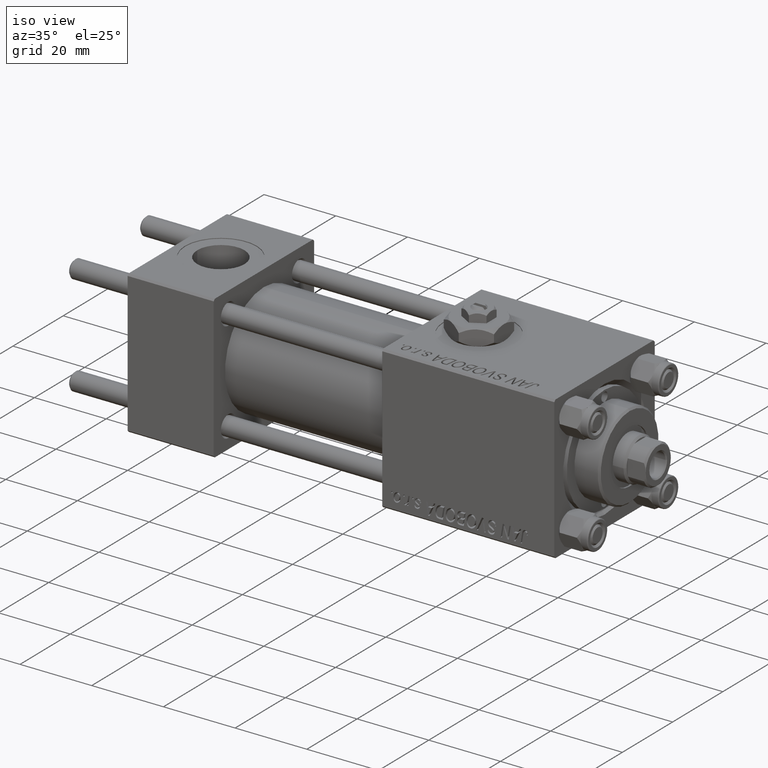
[diagram: clean part render]
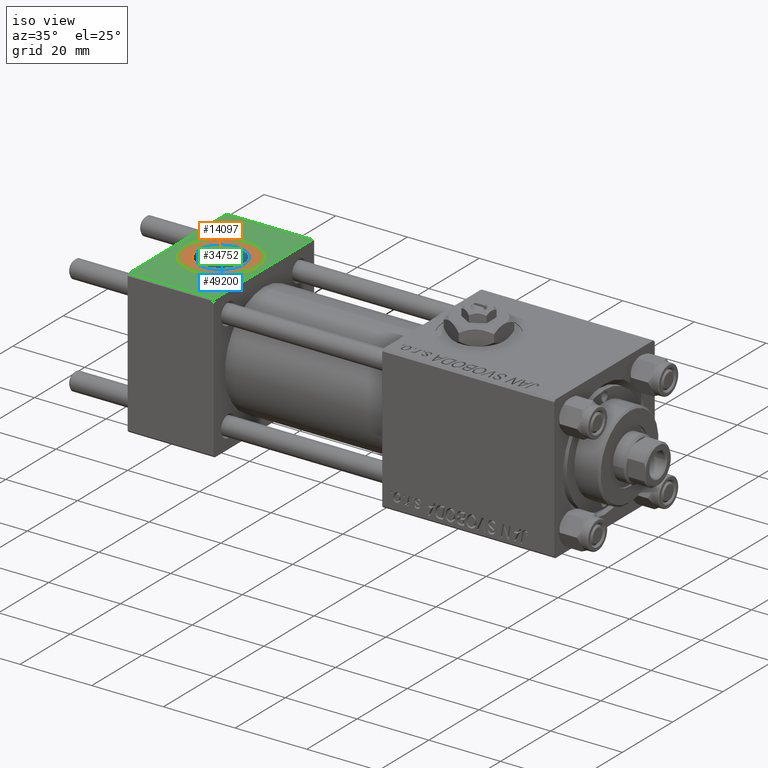
[diagram: same view with three faces highlighted in distinct colors, each labeled with its STEP entity id]
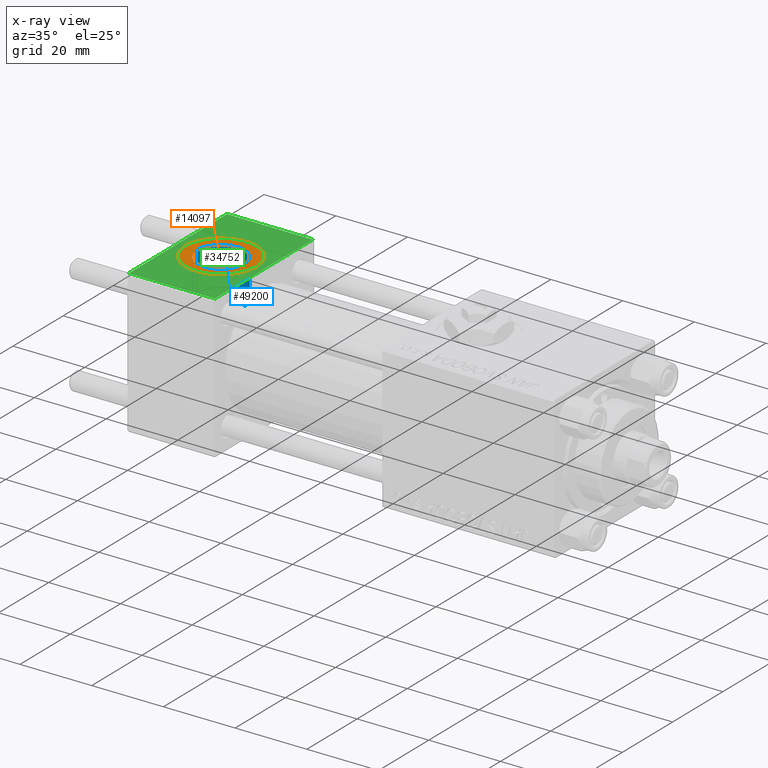
[diagram: x-ray of the same camera — body ghosted, the three highlighted faces saturated]
A machine part, iso view with three faces highlighted in distinct colors.
The next image is the same camera in x-ray (body ghosted, the three faces saturated) — at least one of them is partly hidden behind the body in this view.
Their STEP definitions:

[orange] entity #14097 — the highlighted planar face has unit normal (0, 0, 1).
#1069 = DIRECTION ( 'NONE',  ( 0.000000000000000000, 0.000000000000000000, 1.000000000000000000 ) ) ;
#2196 = DIRECTION ( 'NONE',  ( 1.000000000000000000, 0.000000000000000000, 0.000000000000000000 ) ) ;
#5948 = DIRECTION ( 'NONE',  ( 0.000000000000000000, 0.000000000000000000, 1.000000000000000000 ) ) ;
#7095 = VERTEX_POINT ( 'NONE', #24605 ) ;
#7901 = DIRECTION ( 'NONE',  ( 1.000000000000000000, 0.000000000000000000, 0.000000000000000000 ) ) ;
#9652 = CIRCLE ( 'NONE', #38971, 6.579999999999999183 ) ;
#10726 = CARTESIAN_POINT ( 'NONE',  ( 18.57999999999999829, 1.540743955509788682E-30, 19.79999999999999716 ) ) ;
#10997 = DIRECTION ( 'NONE',  ( 1.000000000000000000, 0.000000000000000000, 0.000000000000000000 ) ) ;
#11486 = EDGE_CURVE ( 'NONE', #45150, #37996, #9652, .T. ) ;
#12414 = EDGE_CURVE ( 'NONE', #33080, #7095, #47421, .T. ) ;
#12714 = ORIENTED_EDGE ( 'NONE', *, *, #12414, .T. ) ;
#13435 = PLANE ( 'NONE',  #46634 ) ;
#13522 = AXIS2_PLACEMENT_3D ( 'NONE', #14762, #35745, #7901 ) ;
#13689 = FACE_BOUND ( 'NONE', #44437, .T. ) ;
#14097 = ADVANCED_FACE ( 'NONE', ( #13689, #33635 ), #13435, .T. ) ;
#14192 = CARTESIAN_POINT ( 'NONE',  ( 5.420000000000000817, 8.058175938389596335E-16, 19.79999999999999716 ) ) ;
#14762 = CARTESIAN_POINT ( 'NONE',  ( 12.00000000000000000, 1.540743955509788682E-30, 19.79999999999999716 ) ) ;
#15389 = ORIENTED_EDGE ( 'NONE', *, *, #36978, .T. ) ;
#19727 = AXIS2_PLACEMENT_3D ( 'NONE', #50510, #22436, #2196 ) ;
#19940 = EDGE_CURVE ( 'NONE', #37996, #45150, #31101, .T. ) ;
#21739 = DIRECTION ( 'NONE',  ( 1.000000000000000000, 0.000000000000000000, 0.000000000000000000 ) ) ;
#22085 = CARTESIAN_POINT ( 'NONE',  ( 12.00000000000000000, 1.540743955509788682E-30, 19.79999999999999716 ) ) ;
#22436 = DIRECTION ( 'NONE',  ( 0.000000000000000000, 0.000000000000000000, 1.000000000000000000 ) ) ;
#22819 = DIRECTION ( 'NONE',  ( 0.000000000000000000, 0.000000000000000000, 1.000000000000000000 ) ) ;
#24605 = CARTESIAN_POINT ( 'NONE',  ( 22.00000000000000000, 1.540743955509788682E-30, 19.79999999999999716 ) ) ;
#28218 = CIRCLE ( 'NONE', #41622, 9.999999999999998224 ) ;
#29109 = CARTESIAN_POINT ( 'NONE',  ( 2.000000000000003553, 1.224646799147354440E-15, 19.79999999999999716 ) ) ;
#31101 = CIRCLE ( 'NONE', #13522, 6.579999999999999183 ) ;
#33080 = VERTEX_POINT ( 'NONE', #29109 ) ;
#33635 = FACE_OUTER_BOUND ( 'NONE', #42897, .T. ) ;
#35745 = DIRECTION ( 'NONE',  ( 0.000000000000000000, 0.000000000000000000, 1.000000000000000000 ) ) ;
#36978 = EDGE_CURVE ( 'NONE', #7095, #33080, #28218, .T. ) ;
#37222 = CARTESIAN_POINT ( 'NONE',  ( 12.00000000000000000, 1.540743955509788682E-30, 19.79999999999999716 ) ) ;
#37996 = VERTEX_POINT ( 'NONE', #14192 ) ;
#38971 = AXIS2_PLACEMENT_3D ( 'NONE', #37222, #5948, #21739 ) ;
#41622 = AXIS2_PLACEMENT_3D ( 'NONE', #50646, #22819, #10997 ) ;
#42897 = EDGE_LOOP ( 'NONE', ( #15389, #12714 ) ) ;
#44170 = ORIENTED_EDGE ( 'NONE', *, *, #19940, .F. ) ;
#44437 = EDGE_LOOP ( 'NONE', ( #47307, #44170 ) ) ;
#45150 = VERTEX_POINT ( 'NONE', #10726 ) ;
#46634 = AXIS2_PLACEMENT_3D ( 'NONE', #22085, #1069, #49661 ) ;
#47307 = ORIENTED_EDGE ( 'NONE', *, *, #11486, .F. ) ;
#47421 = CIRCLE ( 'NONE', #19727, 9.999999999999998224 ) ;
#49661 = DIRECTION ( 'NONE',  ( 1.000000000000000000, 0.000000000000000000, -0.000000000000000000 ) ) ;
#50510 = CARTESIAN_POINT ( 'NONE',  ( 12.00000000000000000, 1.540743955509788682E-30, 19.79999999999999716 ) ) ;
#50646 = CARTESIAN_POINT ( 'NONE',  ( 12.00000000000000000, 1.540743955509788682E-30, 19.79999999999999716 ) ) ;

[blue] entity #49200 — the highlighted cylindrical surface (edge-blend (fillet) strip) has radius 6.58 mm, axis along (0, 0, 1).
#2662 = CARTESIAN_POINT ( 'NONE',  ( 18.57999999999999829, 1.540743955509788682E-30, 9.165987261146492315 ) ) ;
#3015 = CARTESIAN_POINT ( 'NONE',  ( 18.57999999999999829, 1.540743955509788682E-30, 9.199999999999995737 ) ) ;
#5043 = FACE_OUTER_BOUND ( 'NONE', #27341, .T. ) ;
#5948 = DIRECTION ( 'NONE',  ( 0.000000000000000000, 0.000000000000000000, 1.000000000000000000 ) ) ;
#6887 = CARTESIAN_POINT ( 'NONE',  ( 5.420000000000000817, 8.058175938389596335E-16, 9.165987261146492315 ) ) ;
#7738 = DIRECTION ( 'NONE',  ( -0.000000000000000000, -0.000000000000000000, 1.000000000000000000 ) ) ;
#9652 = CIRCLE ( 'NONE', #38971, 6.579999999999999183 ) ;
#10418 = ORIENTED_EDGE ( 'NONE', *, *, #50408, .F. ) ;
#10647 = DIRECTION ( 'NONE',  ( 1.000000000000000000, 0.000000000000000000, 0.000000000000000000 ) ) ;
#10726 = CARTESIAN_POINT ( 'NONE',  ( 18.57999999999999829, 1.540743955509788682E-30, 19.79999999999999716 ) ) ;
#11486 = EDGE_CURVE ( 'NONE', #45150, #37996, #9652, .T. ) ;
#12305 = AXIS2_PLACEMENT_3D ( 'NONE', #24493, #37083, #44723 ) ;
#12401 = CIRCLE ( 'NONE', #51808, 6.579999999999999183 ) ;
#13094 = DIRECTION ( 'NONE',  ( -0.000000000000000000, -0.000000000000000000, 1.000000000000000000 ) ) ;
#14192 = CARTESIAN_POINT ( 'NONE',  ( 5.420000000000000817, 8.058175938389596335E-16, 19.79999999999999716 ) ) ;
#14332 = DIRECTION ( 'NONE',  ( -0.000000000000000000, -0.000000000000000000, -1.000000000000000000 ) ) ;
#16250 = LINE ( 'NONE', #20981, #24902 ) ;
#18568 = EDGE_CURVE ( 'NONE', #21806, #45150, #43723, .T. ) ;
#19308 = CARTESIAN_POINT ( 'NONE',  ( 12.00000000000000000, 1.540743955509788682E-30, 9.165987261146492315 ) ) ;
#20186 = ORIENTED_EDGE ( 'NONE', *, *, #39256, .T. ) ;
#20981 = CARTESIAN_POINT ( 'NONE',  ( 5.420000000000000817, 8.058175938389596335E-16, 9.199999999999995737 ) ) ;
#21739 = DIRECTION ( 'NONE',  ( 1.000000000000000000, 0.000000000000000000, 0.000000000000000000 ) ) ;
#21806 = VERTEX_POINT ( 'NONE', #2662 ) ;
#24493 = CARTESIAN_POINT ( 'NONE',  ( 12.00000000000000000, 1.540743955509788682E-30, 9.199999999999995737 ) ) ;
#24902 = VECTOR ( 'NONE', #13094, 1000.000000000000000 ) ;
#27341 = EDGE_LOOP ( 'NONE', ( #10418, #20186, #51499, #32927 ) ) ;
#32889 = CYLINDRICAL_SURFACE ( 'NONE', #12305, 6.579999999999999183 ) ;
#32927 = ORIENTED_EDGE ( 'NONE', *, *, #11486, .T. ) ;
#37083 = DIRECTION ( 'NONE',  ( -0.000000000000000000, -0.000000000000000000, 1.000000000000000000 ) ) ;
#37222 = CARTESIAN_POINT ( 'NONE',  ( 12.00000000000000000, 1.540743955509788682E-30, 19.79999999999999716 ) ) ;
#37996 = VERTEX_POINT ( 'NONE', #14192 ) ;
#38971 = AXIS2_PLACEMENT_3D ( 'NONE', #37222, #5948, #21739 ) ;
#39256 = EDGE_CURVE ( 'NONE', #49082, #21806, #12401, .T. ) ;
#43619 = VECTOR ( 'NONE', #7738, 1000.000000000000000 ) ;
#43723 = LINE ( 'NONE', #3015, #43619 ) ;
#44723 = DIRECTION ( 'NONE',  ( 1.000000000000000000, 0.000000000000000000, 0.000000000000000000 ) ) ;
#45150 = VERTEX_POINT ( 'NONE', #10726 ) ;
#49082 = VERTEX_POINT ( 'NONE', #6887 ) ;
#49200 = ADVANCED_FACE ( 'NONE', ( #5043 ), #32889, .F. ) ;
#50408 = EDGE_CURVE ( 'NONE', #49082, #37996, #16250, .T. ) ;
#51499 = ORIENTED_EDGE ( 'NONE', *, *, #18568, .T. ) ;
#51808 = AXIS2_PLACEMENT_3D ( 'NONE', #19308, #14332, #10647 ) ;

[green] entity #34752 — the highlighted planar face has unit normal (0, 0, -1).
#442 = AXIS2_PLACEMENT_3D ( 'NONE', #26779, #34897, #39359 ) ;
#2401 = EDGE_CURVE ( 'NONE', #6801, #29772, #11516, .T. ) ;
#2748 = VECTOR ( 'NONE', #29648, 1000.000000000000000 ) ;
#3079 = VECTOR ( 'NONE', #14693, 1000.000000000000000 ) ;
#3718 = CARTESIAN_POINT ( 'NONE',  ( 12.00000000000000000, 1.540743955509788682E-30, 19.99999999999999645 ) ) ;
#4181 = CARTESIAN_POINT ( 'NONE',  ( 24.00000000000000000, 19.50000000000000000, 20.00000000000000000 ) ) ;
#4633 = VECTOR ( 'NONE', #38215, 1000.000000000000000 ) ;
#6278 = CARTESIAN_POINT ( 'NONE',  ( 0.000000000000000000, 20.00000000000000000, 20.00000000000000000 ) ) ;
#6801 = VERTEX_POINT ( 'NONE', #4181 ) ;
#6972 = EDGE_CURVE ( 'NONE', #43094, #29772, #34337, .T. ) ;
#7933 = DIRECTION ( 'NONE',  ( 0.000000000000000000, 0.000000000000000000, 1.000000000000000000 ) ) ;
#8260 = CIRCLE ( 'NONE', #47680, 9.999999999999998224 ) ;
#9622 = CARTESIAN_POINT ( 'NONE',  ( 0.000000000000000000, 19.50000000000000000, 20.00000000000000000 ) ) ;
#9814 = ORIENTED_EDGE ( 'NONE', *, *, #50058, .T. ) ;
#9879 = CIRCLE ( 'NONE', #16601, 9.999999999999998224 ) ;
#11516 = LINE ( 'NONE', #42760, #32105 ) ;
#13624 = CARTESIAN_POINT ( 'NONE',  ( 24.00000000000000000, -19.49999999999999289, 19.99999999999998934 ) ) ;
#14622 = ORIENTED_EDGE ( 'NONE', *, *, #30229, .T. ) ;
#14693 = DIRECTION ( 'NONE',  ( 0.000000000000000000, -1.000000000000000000, -2.602085213965210149E-16 ) ) ;
#16601 = AXIS2_PLACEMENT_3D ( 'NONE', #3718, #7933, #51787 ) ;
#23195 = EDGE_LOOP ( 'NONE', ( #9814, #35046, #38058, #14622 ) ) ;
#24990 = DIRECTION ( 'NONE',  ( 1.000000000000000000, 0.000000000000000000, 0.000000000000000000 ) ) ;
#25646 = LINE ( 'NONE', #9622, #4633 ) ;
#26121 = ORIENTED_EDGE ( 'NONE', *, *, #39630, .F. ) ;
#26779 = CARTESIAN_POINT ( 'NONE',  ( 24.00000000000000000, 20.00000000000000000, 20.00000000000000000 ) ) ;
#27250 = CARTESIAN_POINT ( 'NONE',  ( 0.000000000000000000, -19.49999999999999289, 19.99999999999998934 ) ) ;
#28692 = CARTESIAN_POINT ( 'NONE',  ( 22.00000000000000000, 1.540743955509788682E-30, 19.99999999999999645 ) ) ;
#29648 = DIRECTION ( 'NONE',  ( 1.000000000000000000, 0.000000000000000000, 0.000000000000000000 ) ) ;
#29772 = VERTEX_POINT ( 'NONE', #36295 ) ;
#30055 = CARTESIAN_POINT ( 'NONE',  ( 0.000000000000000000, 19.50000000000000000, 20.00000000000000000 ) ) ;
#30229 = EDGE_CURVE ( 'NONE', #6801, #49762, #25646, .T. ) ;
#30454 = PLANE ( 'NONE',  #442 ) ;
#31215 = DIRECTION ( 'NONE',  ( 0.000000000000000000, -1.000000000000000000, -2.602085213965210149E-16 ) ) ;
#32080 = CARTESIAN_POINT ( 'NONE',  ( 12.00000000000000000, 1.540743955509788682E-30, 19.99999999999999645 ) ) ;
#32105 = VECTOR ( 'NONE', #31215, 1000.000000000000000 ) ;
#32607 = VERTEX_POINT ( 'NONE', #36375 ) ;
#34337 = LINE ( 'NONE', #13624, #2748 ) ;
#34752 = ADVANCED_FACE ( 'NONE', ( #50919, #43037 ), #30454, .F. ) ;
#34897 = DIRECTION ( 'NONE',  ( 0.000000000000000000, 2.602085213965210149E-16, -1.000000000000000000 ) ) ;
#35046 = ORIENTED_EDGE ( 'NONE', *, *, #6972, .T. ) ;
#36295 = CARTESIAN_POINT ( 'NONE',  ( 24.00000000000000000, -19.49999999999999289, 19.99999999999998934 ) ) ;
#36375 = CARTESIAN_POINT ( 'NONE',  ( 2.000000000000003553, 1.224646799147354440E-15, 19.99999999999999645 ) ) ;
#38058 = ORIENTED_EDGE ( 'NONE', *, *, #2401, .F. ) ;
#38064 = LINE ( 'NONE', #6278, #3079 ) ;
#38215 = DIRECTION ( 'NONE',  ( -1.000000000000000000, 0.000000000000000000, 0.000000000000000000 ) ) ;
#39346 = ORIENTED_EDGE ( 'NONE', *, *, #41730, .F. ) ;
#39359 = DIRECTION ( 'NONE',  ( 0.000000000000000000, 1.000000000000000000, 2.602085213965210149E-16 ) ) ;
#39630 = EDGE_CURVE ( 'NONE', #32607, #39737, #9879, .T. ) ;
#39737 = VERTEX_POINT ( 'NONE', #28692 ) ;
#41730 = EDGE_CURVE ( 'NONE', #39737, #32607, #8260, .T. ) ;
#42760 = CARTESIAN_POINT ( 'NONE',  ( 24.00000000000000000, 20.00000000000000000, 20.00000000000000000 ) ) ;
#43037 = FACE_OUTER_BOUND ( 'NONE', #23195, .T. ) ;
#43094 = VERTEX_POINT ( 'NONE', #27250 ) ;
#44168 = DIRECTION ( 'NONE',  ( 0.000000000000000000, 0.000000000000000000, 1.000000000000000000 ) ) ;
#45074 = EDGE_LOOP ( 'NONE', ( #39346, #26121 ) ) ;
#47680 = AXIS2_PLACEMENT_3D ( 'NONE', #32080, #44168, #24990 ) ;
#49762 = VERTEX_POINT ( 'NONE', #30055 ) ;
#50058 = EDGE_CURVE ( 'NONE', #49762, #43094, #38064, .T. ) ;
#50919 = FACE_BOUND ( 'NONE', #45074, .T. ) ;
#51787 = DIRECTION ( 'NONE',  ( 1.000000000000000000, 0.000000000000000000, 0.000000000000000000 ) ) ;